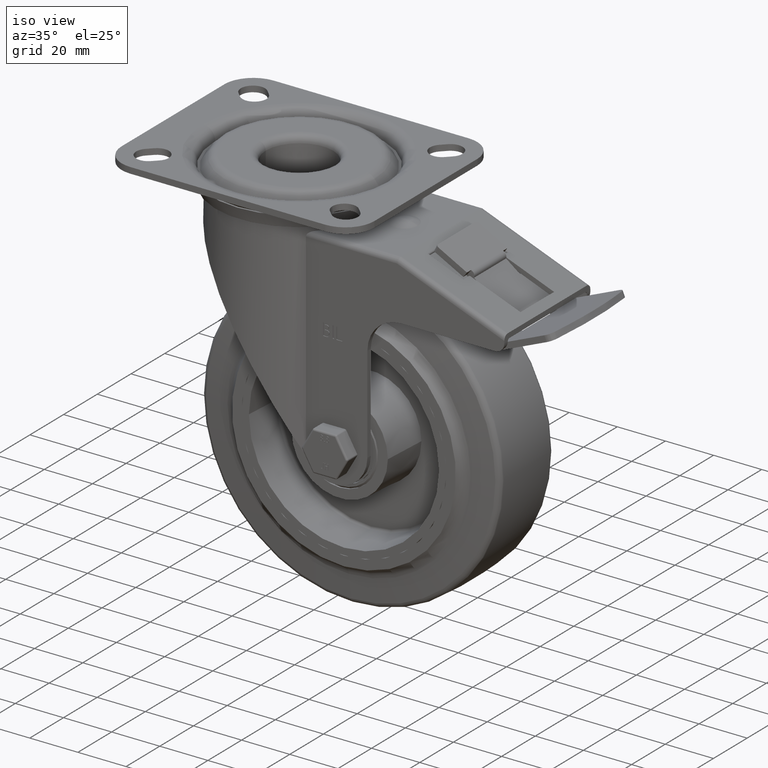
[diagram: clean part render]
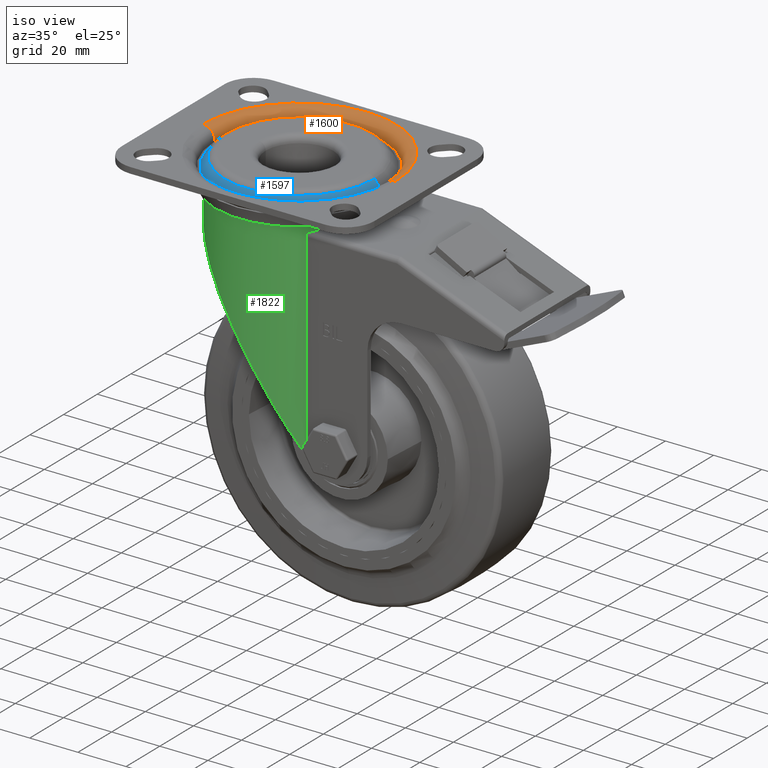
[diagram: same view with three faces highlighted in distinct colors, each labeled with its STEP entity id]
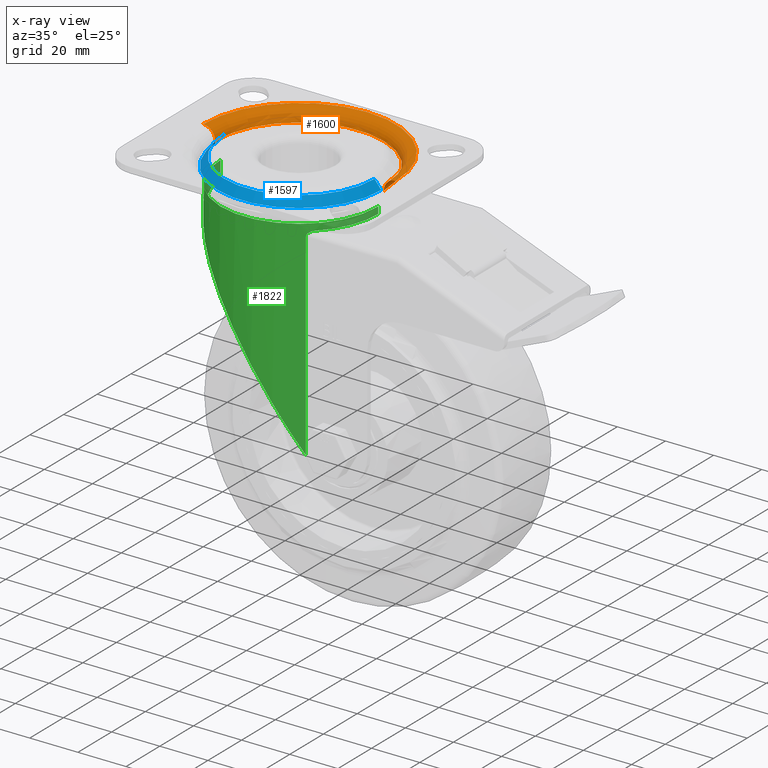
[diagram: x-ray of the same camera — body ghosted, the three highlighted faces saturated]
A machine part, iso view with three faces highlighted in distinct colors.
The next image is the same camera in x-ray (body ghosted, the three faces saturated) — at least one of them is partly hidden behind the body in this view.
Their STEP definitions:

[orange] entity #1600 — the highlighted toroidal blend (fillet) surface has major radius 40 mm and minor (blend) radius 5 mm.
#1600=ADVANCED_FACE('77:25693',(#3056),#3057,.T.);
#3056=FACE_OUTER_BOUND('',#5638,.T.);
#3057=TOROIDAL_SURFACE('',#5639,0.04,0.005);
#5638=EDGE_LOOP('',(#14083,#14084,#14085,#14086));
#5639=AXIS2_PLACEMENT_3D('',#14087,#14088,#14089);
#14083=ORIENTED_EDGE('',*,*,#25019,.F.);
#14084=ORIENTED_EDGE('',*,*,#25020,.T.);
#14085=ORIENTED_EDGE('',*,*,#25021,.F.);
#14086=ORIENTED_EDGE('',*,*,#25022,.T.);
#14087=CARTESIAN_POINT('',(1.63670789225912E-19,0.0,-0.0025));
#14088=DIRECTION('',(-0.0,0.0,-1.0));
#14089=DIRECTION('',(-1.0,0.0,0.0));
#25019=EDGE_CURVE('',#28312,#28313,#28314,.T.);
#25020=EDGE_CURVE('77:27040',#28312,#28315,#28316,.T.);
#25021=EDGE_CURVE('',#28317,#28315,#28318,.T.);
#25022=EDGE_CURVE('77:27043',#28317,#28313,#28319,.T.);
#28312=VERTEX_POINT('',#33651);
#28313=VERTEX_POINT('',#33652);
#28314=CIRCLE('',#33653,0.005);
#28315=VERTEX_POINT('',#33654);
#28316=CIRCLE('',#33655,0.035);
#28317=VERTEX_POINT('',#33656);
#28318=CIRCLE('',#33657,0.005);
#28319=CIRCLE('',#33658,0.04);
#33651=CARTESIAN_POINT('',(-0.035,0.0,-0.00249999999999993));
#33652=CARTESIAN_POINT('',(-0.04,-9.79717439317882E-18,0.0025));
#33653=AXIS2_PLACEMENT_3D('',#45431,#45432,#45433);
#33654=CARTESIAN_POINT('',(0.035,4.28626379701574E-18,-0.00249999999999993));
#33655=AXIS2_PLACEMENT_3D('',#45434,#45435,#45436);
#33656=CARTESIAN_POINT('',(0.04,4.89858719658941E-18,0.0025));
#33657=AXIS2_PLACEMENT_3D('',#45437,#45438,#45439);
#33658=AXIS2_PLACEMENT_3D('',#45440,#45441,#45442);
#45431=CARTESIAN_POINT('',(-0.04,-4.89858719658941E-18,-0.0025));
#45432=DIRECTION('',(1.22464679914735E-16,-1.0,-0.0));
#45433=DIRECTION('',(-1.0,-1.22464679914735E-16,0.0));
#45434=CARTESIAN_POINT('',(1.63670789225907E-19,0.0,-0.00249999999999993));
#45435=DIRECTION('',(6.53866449118381E-17,0.0,-1.0));
#45436=DIRECTION('',(-1.0,0.0,-6.53866449118381E-17));
#45437=CARTESIAN_POINT('',(0.04,4.89858719658941E-18,-0.0025));
#45438=DIRECTION('',(1.22464679914735E-16,-1.0,-0.0));
#45439=DIRECTION('',(1.0,1.22464679914735E-16,0.0));
#45440=CARTESIAN_POINT('',(1.63670789225912E-19,0.0,0.0025));
#45441=DIRECTION('',(0.0,-0.0,1.0));
#45442=DIRECTION('',(1.0,1.22464679914735E-16,0.0));

[blue] entity #1597 — the highlighted conical surface has half-angle 38.66 deg.
#1597=ADVANCED_FACE('77:25708',(#3050),#3051,.T.);
#3050=FACE_OUTER_BOUND('',#5632,.T.);
#3051=CONICAL_SURFACE('',#5633,0.0326,0.674740942223554);
#5632=EDGE_LOOP('',(#14062,#14063,#14064,#14065));
#5633=AXIS2_PLACEMENT_3D('',#14066,#14067,#14068);
#14062=ORIENTED_EDGE('',*,*,#25008,.F.);
#14063=ORIENTED_EDGE('',*,*,#25009,.F.);
#14064=ORIENTED_EDGE('',*,*,#25010,.F.);
#14065=ORIENTED_EDGE('',*,*,#25007,.T.);
#14066=CARTESIAN_POINT('',(4.92441606301925E-20,0.0,-0.000749999999999963));
#14067=DIRECTION('',(6.53866449118381E-17,-0.0,-1.0));
#14068=DIRECTION('',(-1.0,0.0,-6.53866449118381E-17));
#25007=EDGE_CURVE('77:27127',#28286,#28290,#28292,.T.);
#25008=EDGE_CURVE('',#28293,#28290,#28294,.T.);
#25009=EDGE_CURVE('77:27130',#28295,#28293,#28296,.T.);
#25010=EDGE_CURVE('',#28286,#28295,#28297,.T.);
#28286=VERTEX_POINT('',#33621);
#28290=VERTEX_POINT('',#33625);
#28292=CIRCLE('',#33627,0.0312000000000001);
#28293=VERTEX_POINT('',#33628);
#28294=LINE('',#33629,#33630);
#28295=VERTEX_POINT('',#33631);
#28296=CIRCLE('',#33632,0.034);
#28297=LINE('',#33633,#33634);
#33621=CARTESIAN_POINT('',(0.0312,3.82089801333975E-18,0.001));
#33625=CARTESIAN_POINT('',(-0.0312000000000001,0.0,0.001));
#33627=AXIS2_PLACEMENT_3D('',#45403,#45404,#45405);
#33628=CARTESIAN_POINT('',(-0.034,0.0,-0.00249999999999993));
#33629=CARTESIAN_POINT('',(-0.0326,-3.99234856522037E-18,-0.000749999999999965));
#33630=VECTOR('',#45406,1.0);
#33631=CARTESIAN_POINT('',(0.034,4.163799117101E-18,-0.00249999999999993));
#33632=AXIS2_PLACEMENT_3D('',#45407,#45408,#45409);
#33633=CARTESIAN_POINT('',(0.0326,3.99234856522037E-18,-0.00074999999999996));
#33634=VECTOR('',#45410,1.0);
#45403=CARTESIAN_POINT('',(-6.51824679655219E-20,0.0,0.001));
#45404=DIRECTION('',(6.53866449118381E-17,0.0,-1.0));
#45405=DIRECTION('',(-1.0,0.0,-6.53866449118381E-17));
#45406=DIRECTION('',(0.624695047554425,7.6503079043073E-17,0.78086880944303));
#45407=CARTESIAN_POINT('',(1.63670789225907E-19,0.0,-0.00249999999999993));
#45408=DIRECTION('',(6.53866449118381E-17,0.0,-1.0));
#45409=DIRECTION('',(-1.0,0.0,-6.53866449118381E-17));
#45410=DIRECTION('',(0.624695047554425,7.6503079043073E-17,-0.78086880944303));

[green] entity #1822 — the highlighted cylindrical surface (partial cylindrical patch) has radius 32.75 mm, axis along (-0, 0, -1).
#1822=ADVANCED_FACE('4:14567',(#3516),#3517,.T.);
#3516=FACE_OUTER_BOUND('',#6098,.T.);
#3517=CYLINDRICAL_SURFACE('',#6099,0.03275);
#6098=EDGE_LOOP('',(#16037,#16038,#16039,#16040,#16041,#16042,#16043,#16044));
#6099=AXIS2_PLACEMENT_3D('',#16045,#16046,#16047);
#16037=ORIENTED_EDGE('',*,*,#25649,.F.);
#16038=ORIENTED_EDGE('',*,*,#25650,.F.);
#16039=ORIENTED_EDGE('',*,*,#25651,.F.);
#16040=ORIENTED_EDGE('',*,*,#25652,.T.);
#16041=ORIENTED_EDGE('',*,*,#25653,.T.);
#16042=ORIENTED_EDGE('',*,*,#25654,.F.);
#16043=ORIENTED_EDGE('',*,*,#25655,.F.);
#16044=ORIENTED_EDGE('',*,*,#25656,.T.);
#16045=CARTESIAN_POINT('',(-3.4910426483396E-18,-3.46944695195361E-18,-0.00900000000000006));
#16046=DIRECTION('',(-2.54426109809932E-15,1.10141173077893E-16,-1.0));
#16047=DIRECTION('',(1.0,0.0,-2.54426109809932E-15));
#25649=EDGE_CURVE('',#29319,#29351,#29352,.T.);
#25650=EDGE_CURVE('4:15008',#29322,#29319,#29353,.T.);
#25651=EDGE_CURVE('',#29354,#29322,#29355,.T.);
#25652=EDGE_CURVE('4:15029',#29354,#29356,#29357,.T.);
#25653=EDGE_CURVE('4:15014',#29356,#29358,#29359,.T.);
#25654=EDGE_CURVE('4:15017',#29360,#29358,#29361,.F.);
#25655=EDGE_CURVE('4:15017',#29362,#29360,#29363,.F.);
#25656=EDGE_CURVE('4:15020',#29362,#29351,#29364,.T.);
#29319=VERTEX_POINT('',#35072);
#29322=VERTEX_POINT('',#35075);
#29351=VERTEX_POINT('',#35108);
#29352=LINE('',#35109,#35110);
#29353=CIRCLE('',#35111,0.03275);
#29354=VERTEX_POINT('',#35112);
#29355=LINE('',#35113,#35114);
#29356=VERTEX_POINT('',#35115);
#29357=B_SPLINE_CURVE_WITH_KNOTS('',3,(#35116,#35117,#35118,#35119,#35120,#35121,#35122,#35123,#35124,#35125,#35126,#35127,#35128,#35129,#35130,#35131,#35132,#35133,#35134,#35135,#35136,#35137,#35138,#35139,#35140,#35141,#35142,#35143,#35144,#35145,#35146,#35147,#35148,#35149,#35150,#35151,#35152,#35153,#35154,#35155,#35156,#35157,#35158,#35159,#35160,#35161,#35162,#35163,#35164,#35165,#35166,#35167,#35168,#35169,#35170,#35171,#35172,#35173,#35174,#35175,#35176,#35177,#35178,#35179,#35180,#35181,#35182,#35183,#35184,#35185,#35186,#35187,#35188,#35189,#35190,#35191,#35192,#35193,#35194,#35195,#35196,#35197,#35198,#35199,#35200),.UNSPECIFIED.,.F.,.F.,(4,3,3,3,3,3,3,3,3,3,3,3,3,3,3,3,3,3,3,3,3,3,3,3,3,3,3,3,4),(0.0395101687481715,0.0567856951425846,0.0691323622525497,0.0749198624603458,0.0791482513857483,0.0811322202213414,0.0935884079964447,0.105987151671932,0.115258727748813,0.117844681288189,0.120143524526436,0.127655870317088,0.134263814215403,0.14129875659311,0.146905190432693,0.150993255874414,0.157075497403315,0.162983850861627,0.168693133239151,0.170754431460245,0.172688242006611,0.188427939609893,0.201785689611296,0.208354024522637,0.212865135711295,0.215815446389855,0.231296568325384,0.248406481341421,0.254332368902025),.UNSPECIFIED.);
#29358=VERTEX_POINT('',#35201);
#29359=LINE('',#35202,#35203);
#29360=VERTEX_POINT('',#35204);
#29361=B_SPLINE_CURVE_WITH_KNOTS('',3,(#35205,#35206,#35207,#35208,#35209,#35210,#35211,#35212,#35213,#35214),.UNSPECIFIED.,.F.,.F.,(4,3,3,4),(0.0,0.000778496253215351,0.00142393883810729,0.00170978072226273),.UNSPECIFIED.);
#29362=VERTEX_POINT('',#35215);
#29363=B_SPLINE_CURVE_WITH_KNOTS('',3,(#35216,#35217,#35218,#35219,#35220,#35221,#35222),.UNSPECIFIED.,.F.,.F.,(4,3,4),(0.00170978072226273,0.00319563414826715,0.00381036075206976),.UNSPECIFIED.);
#29364=CIRCLE('',#35223,0.03275);
#35072=CARTESIAN_POINT('',(0.03275,5.41271315253969E-19,-0.00900000000000015));
#35075=CARTESIAN_POINT('',(-0.03275,-7.48016521916119E-18,-0.00899999999999998));
#35108=CARTESIAN_POINT('',(0.03275,8.49666599872052E-19,-0.0118));
#35109=CARTESIAN_POINT('',(0.03275,5.41271315253969E-19,-0.00900000000000015));
#35110=VECTOR('',#46485,1.0);
#35111=AXIS2_PLACEMENT_3D('',#46486,#46487,#46488);
#35112=CARTESIAN_POINT('',(-0.03275,2.16840434497128E-19,-0.0160000000000001));
#35113=CARTESIAN_POINT('',(-0.03275,-7.48016521916119E-18,-0.00899999999999998));
#35114=VECTOR('',#46489,1.0);
#35115=CARTESIAN_POINT('',(0.0205502433075618,-0.0255,-0.095905554362474));
#35116=CARTESIAN_POINT('',(0.0205502433075618,0.0255,-0.095905554362474));
#35117=CARTESIAN_POINT('',(0.0179931525487304,0.0275607387158237,-0.0907560859765332));
#35118=CARTESIAN_POINT('',(0.0151746717847856,0.0291987197333395,-0.085384225385052));
#35119=CARTESIAN_POINT('',(0.0122001607236055,0.030392738907808,-0.0800453686323493));
#35120=CARTESIAN_POINT('',(0.0100743037714737,0.0312460939334961,-0.0762297345631769));
#35121=CARTESIAN_POINT('',(0.00786978963012987,0.0318708559753388,-0.0724308038001772));
#35122=CARTESIAN_POINT('',(0.00564030298071712,0.0322606491299495,-0.068735726096669));
#35123=CARTESIAN_POINT('',(0.00459523111380489,0.0324433646711733,-0.0670036584231495));
#35124=CARTESIAN_POINT('',(0.00354484697353756,0.0325745880449053,-0.0652943156562975));
#35125=CARTESIAN_POINT('',(0.00249565835400328,0.0326547728422675,-0.0636162933440704));
#35126=CARTESIAN_POINT('',(0.00172911366627765,0.0327133564270586,-0.0623903182759328));
#35127=CARTESIAN_POINT('',(0.000963222644465949,0.0327447120061488,-0.061181059940967));
#35128=CARTESIAN_POINT('',(0.000200700257027547,0.0327493850233379,-0.0599917521821107));
#35129=CARTESIAN_POINT('',(-0.000157076825404811,0.0327515776126751,-0.0594337265200614));
#35130=CARTESIAN_POINT('',(-0.00051613385402968,0.0327479690168514,-0.0588769059046716));
#35131=CARTESIAN_POINT('',(-0.000881198680965993,0.032738142721979,-0.0583140756783995));
#35132=CARTESIAN_POINT('',(-0.00317322865282036,0.0326764491248472,-0.0547803916516276));
#35133=CARTESIAN_POINT('',(-0.00564410730733615,0.0323658280552408,-0.0511048928440923));
#35134=CARTESIAN_POINT('',(-0.00817667239683065,0.0317128448505477,-0.047480963407183));
#35135=CARTESIAN_POINT('',(-0.0106975580765481,0.0310628730031764,-0.0438737464161147));
#35136=CARTESIAN_POINT('',(-0.0132789135668849,0.0300735803675919,-0.0403183087979279));
#35137=CARTESIAN_POINT('',(-0.0157859194572987,0.0286943765725565,-0.0369808257634508));
#35138=CARTESIAN_POINT('',(-0.0176606171239756,0.0276630307164054,-0.0344851109822323));
#35139=CARTESIAN_POINT('',(-0.0194929343536559,0.0264147125125071,-0.0321111345450516));
#35140=CARTESIAN_POINT('',(-0.0212212521075271,0.0249443572574797,-0.0299197922428071));
#35141=CARTESIAN_POINT('',(-0.0217033006153244,0.0245342575781642,-0.0293086006465257));
#35142=CARTESIAN_POINT('',(-0.0221772418340315,0.0241069639169177,-0.0287115739288243));
#35143=CARTESIAN_POINT('',(-0.0226417185110855,0.0236625248624227,-0.0281299255626011));
#35144=CARTESIAN_POINT('',(-0.0230546258012245,0.0232674304805316,-0.0276128557880017));
#35145=CARTESIAN_POINT('',(-0.0234591505269862,0.0228600488013307,-0.0271090232605885));
#35146=CARTESIAN_POINT('',(-0.0238649247473756,0.0224282827430479,-0.026606236585267));
#35147=CARTESIAN_POINT('',(-0.0251909465507682,0.0210173227104011,-0.0249631896383915));
#35148=CARTESIAN_POINT('',(-0.0264992098741067,0.0193703225156125,-0.0233716621350092));
#35149=CARTESIAN_POINT('',(-0.0276771573103575,0.0175082113083469,-0.0219586562954137));
#35150=CARTESIAN_POINT('',(-0.0287132931314208,0.0158702773350007,-0.0207157604575176));
#35151=CARTESIAN_POINT('',(-0.0296476486816655,0.014067864528505,-0.0196114384950327));
#35152=CARTESIAN_POINT('',(-0.0304183445073851,0.0121361780404719,-0.0187078096435318));
#35153=CARTESIAN_POINT('',(-0.0312388418978155,0.0100796679755825,-0.0177457892331037));
#35154=CARTESIAN_POINT('',(-0.0318731441086265,0.00787528479631629,-0.0170115128916807));
#35155=CARTESIAN_POINT('',(-0.032268496013352,0.00559523592320152,-0.0165549559226086));
#35156=CARTESIAN_POINT('',(-0.0325835681458858,0.00377817155055785,-0.016191106966402));
#35157=CARTESIAN_POINT('',(-0.0327474195421753,0.00191343494823207,-0.0160029682684387));
#35158=CARTESIAN_POINT('',(-0.0327499695105557,4.46884512399277E-05,-0.0160000350716232));
#35159=CARTESIAN_POINT('',(-0.0327518288810418,-0.00131795279135414,-0.0159978962609499));
#35160=CARTESIAN_POINT('',(-0.0326679808059624,-0.00269240958929343,-0.0160942416153699));
#35161=CARTESIAN_POINT('',(-0.0324980824765962,-0.00405427371354611,-0.0162900750176108));
#35162=CARTESIAN_POINT('',(-0.0322453070038711,-0.0060804610755965,-0.0165814368044598));
#35163=CARTESIAN_POINT('',(-0.0318006824151097,-0.00807719477445764,-0.0170944730455837));
#35164=CARTESIAN_POINT('',(-0.0311945379664998,-0.00997312895016415,-0.0178006396224484));
#35165=CARTESIAN_POINT('',(-0.0306057228673027,-0.0118148593698687,-0.0184866172701193));
#35166=CARTESIAN_POINT('',(-0.0298656939884892,-0.013561009096202,-0.0193537854852197));
#35167=CARTESIAN_POINT('',(-0.0290244473036462,-0.0151704963240451,-0.020351597868583));
#35168=CARTESIAN_POINT('',(-0.0282115448754462,-0.0167257548460026,-0.0213157908026394));
#35169=CARTESIAN_POINT('',(-0.0273052198533521,-0.018151988919713,-0.0224010012580875));
#35170=CARTESIAN_POINT('',(-0.0263659589468542,-0.0194267524000488,-0.0235402192681237));
#35171=CARTESIAN_POINT('',(-0.0260268450779503,-0.0198869972295349,-0.02395152631203));
#35172=CARTESIAN_POINT('',(-0.0256835445456795,-0.0203276547903836,-0.0243696939243357));
#35173=CARTESIAN_POINT('',(-0.0253391501385495,-0.0207482522217185,-0.0247910671289877));
#35174=CARTESIAN_POINT('',(-0.0250160559206426,-0.0211428364406182,-0.0251863791409874));
#35175=CARTESIAN_POINT('',(-0.0246874983721983,-0.0215253417070999,-0.0255900067031797));
#35176=CARTESIAN_POINT('',(-0.0243529111775015,-0.0218974477321153,-0.026002850393721));
#35177=CARTESIAN_POINT('',(-0.0216296344447554,-0.0249260982486345,-0.0293630734821487));
#35178=CARTESIAN_POINT('',(-0.0185362207310432,-0.0272386689009854,-0.0333037781958396));
#35179=CARTESIAN_POINT('',(-0.0153546871815621,-0.028927427842039,-0.0375560470934567));
#35180=CARTESIAN_POINT('',(-0.0126546270631145,-0.0303606205447073,-0.0411648041550454));
#35181=CARTESIAN_POINT('',(-0.00989041103255739,-0.0313413952426968,-0.0449985924596086));
#35182=CARTESIAN_POINT('',(-0.00721176845488949,-0.0319460935914403,-0.0488682679622711));
#35183=CARTESIAN_POINT('',(-0.00589461387750539,-0.032243438673843,-0.0507710827849044));
#35184=CARTESIAN_POINT('',(-0.00459787625668058,-0.0324503938787131,-0.0526820410152709));
#35185=CARTESIAN_POINT('',(-0.00333718080625533,-0.0325795292210671,-0.0545762309085934));
#35186=CARTESIAN_POINT('',(-0.00247133924539275,-0.0326682189568383,-0.0558771544054231));
#35187=CARTESIAN_POINT('',(-0.00162247344139713,-0.0327202511914391,-0.0571701247123083));
#35188=CARTESIAN_POINT('',(-0.00079521630217355,-0.0327403440884905,-0.0584466977218052));
#35189=CARTESIAN_POINT('',(-0.000254182071427427,-0.0327534850389693,-0.0592815889103329));
#35190=CARTESIAN_POINT('',(0.000274755279881924,-0.0327531897360977,-0.0601048877292286));
#35191=CARTESIAN_POINT('',(0.000807911223689066,-0.0327400332842628,-0.060941935708351));
#35192=CARTESIAN_POINT('',(0.00360553258496238,-0.0326709976275858,-0.0653341652877148));
#35193=CARTESIAN_POINT('',(0.00643613111800537,-0.0322382305352467,-0.0699835201833096));
#35194=CARTESIAN_POINT('',(0.0091790151645199,-0.0314373691744317,-0.0747245293263933));
#35195=CARTESIAN_POINT('',(0.0122104819822595,-0.0305522480392509,-0.0799643468528112));
#35196=CARTESIAN_POINT('',(0.0151340153378175,-0.0292209760808647,-0.0853162751827401));
#35197=CARTESIAN_POINT('',(0.0178313659527132,-0.0274700725929222,-0.0905379222802322));
#35198=CARTESIAN_POINT('',(0.0187655727157993,-0.0268636605562689,-0.0923463998307544));
#35199=CARTESIAN_POINT('',(0.0196731046332814,-0.0262068789478798,-0.0941391728378082));
#35200=CARTESIAN_POINT('',(0.0205502433075619,-0.0255,-0.095905554362474));
#35201=CARTESIAN_POINT('',(0.0205502433075621,-0.0255,-0.0138));
#35202=CARTESIAN_POINT('',(0.0205502433075621,-0.0255,-0.00900000000000012));
#35203=VECTOR('',#46490,1.0);
#35204=CARTESIAN_POINT('',(0.0212566333780414,-0.0249142135623731,-0.0123857864376269));
#35205=CARTESIAN_POINT('',(0.0205502433075621,-0.0255,-0.0138));
#35206=CARTESIAN_POINT('',(0.0205502433075621,-0.0255,-0.0135405012489282));
#35207=CARTESIAN_POINT('',(0.0206167540392398,-0.0254466754044757,-0.0132791245547339));
#35208=CARTESIAN_POINT('',(0.0207298372179523,-0.0253542175765137,-0.0130504153290338));
#35209=CARTESIAN_POINT('',(0.0208235932236808,-0.0252775618196918,-0.0128607950537725));
#35210=CARTESIAN_POINT('',(0.0209481386303143,-0.0251747279265672,-0.0126926513606193));
#35211=CARTESIAN_POINT('',(0.0210783343567229,-0.0250652412864148,-0.0125550021223703));
#35212=CARTESIAN_POINT('',(0.0211359930743482,-0.0250167538326218,-0.0124940425288532));
#35213=CARTESIAN_POINT('',(0.0211946176952627,-0.0249671249107171,-0.0124386977859709));
#35214=CARTESIAN_POINT('',(0.0212566333780414,-0.0249142135623731,-0.0123857864376269));
#35215=CARTESIAN_POINT('',(0.0228103594886183,-0.0235,-0.0118));
#35216=CARTESIAN_POINT('',(0.0212566333780414,-0.0249142135623731,-0.0123857864376269));
#35217=CARTESIAN_POINT('',(0.0215790012123877,-0.0246391715727708,-0.0121107444480246));
#35218=CARTESIAN_POINT('',(0.0219715550656271,-0.0242916287069477,-0.0119277365455137));
#35219=CARTESIAN_POINT('',(0.0223513126159473,-0.0239370283106361,-0.0118483324423195));
#35220=CARTESIAN_POINT('',(0.0225084257369935,-0.0237903231959076,-0.0118154814128503));
#35221=CARTESIAN_POINT('',(0.0226633256444518,-0.0236427189294652,-0.0118));
#35222=CARTESIAN_POINT('',(0.0228103594886183,-0.0235,-0.0118));
#35223=AXIS2_PLACEMENT_3D('',#46491,#46492,#46493);
#46485=DIRECTION('',(-2.54426109809932E-15,1.10141173077893E-16,-1.0));
#46486=CARTESIAN_POINT('',(-3.4910426483396E-18,-3.46944695195361E-18,-0.00900000000000006));
#46487=DIRECTION('',(2.54426109809932E-15,-1.10141173077893E-16,1.0));
#46488=DIRECTION('',(1.0,-8.62658551769193E-33,-2.54426109809932E-15));
#46489=DIRECTION('',(2.54426109809932E-15,-1.10141173077893E-16,1.0));
#46490=DIRECTION('',(2.54426109809932E-15,-1.10141173077893E-16,1.0));
#46491=CARTESIAN_POINT('',(-1.06149737230173E-17,-3.16105166733553E-18,-0.0117999999999999));
#46492=DIRECTION('',(2.54426109809932E-15,-1.10141173077893E-16,1.0));
#46493=DIRECTION('',(1.0,0.0,-2.54426109809932E-15));